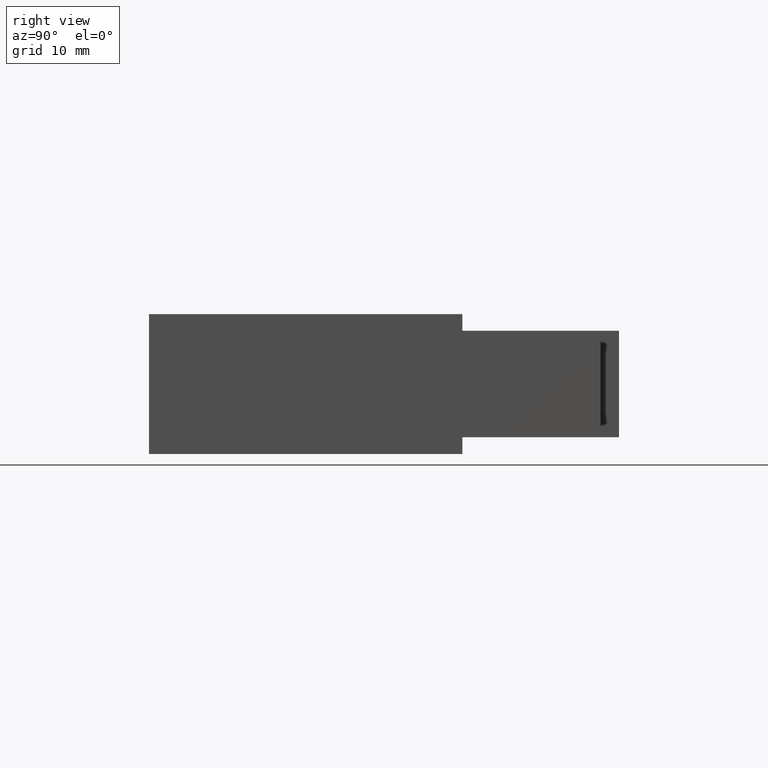
[diagram: clean part render]
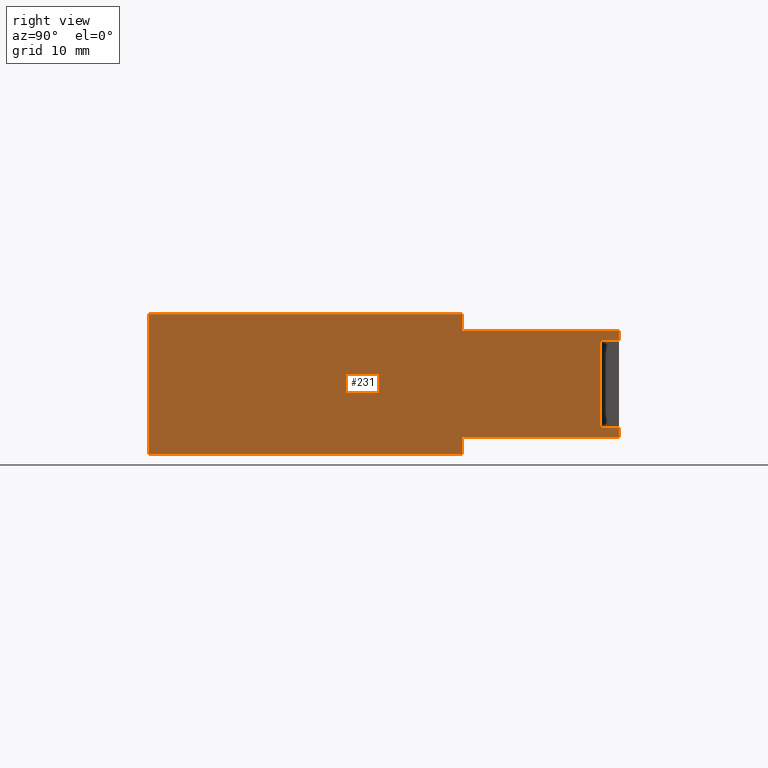
[diagram: same view with one face highlighted and labeled with its STEP entity id]
A machine part, right view. The second image highlights one B-rep face of the part: STEP entity #231.
In plain terms, the highlighted planar face has unit normal (-1, -0, 0).
Its self-contained STEP definition (entity closure, byte-faithful):
#89 = ORIENTED_EDGE ( 'NONE', *, *, #299, .F. ) ;
#105 = EDGE_LOOP ( 'NONE', ( #232, #236, #239, #242, #245, #224, #226, #227, #89, #300, #303, #124 ) ) ;
#124 = ORIENTED_EDGE ( 'NONE', *, *, #125, .F. ) ;
#125 = EDGE_CURVE ( 'NONE', #235, #305, #834, .T. ) ;
#222 = EDGE_CURVE ( 'NONE', #223, #244, #908, .T. ) ;
#223 = VERTEX_POINT ( 'NONE', #903 ) ;
#224 = ORIENTED_EDGE ( 'NONE', *, *, #225, .F. ) ;
#225 = EDGE_CURVE ( 'NONE', #316, #223, #904, .T. ) ;
#226 = ORIENTED_EDGE ( 'NONE', *, *, #315, .T. ) ;
#227 = ORIENTED_EDGE ( 'NONE', *, *, #228, .T. ) ;
#228 = EDGE_CURVE ( 'NONE', #313, #229, #1096, .T. ) ;
#229 = VERTEX_POINT ( 'NONE', #1092 ) ;
#230 = VERTEX_POINT ( 'NONE', #1091 ) ;
#231 = ADVANCED_FACE ( 'NONE', ( #1090 ), #1089, .F. ) ;
#232 = ORIENTED_EDGE ( 'NONE', *, *, #233, .F. ) ;
#233 = EDGE_CURVE ( 'NONE', #234, #235, #1084, .T. ) ;
#234 = VERTEX_POINT ( 'NONE', #1080 ) ;
#235 = VERTEX_POINT ( 'NONE', #1079 ) ;
#236 = ORIENTED_EDGE ( 'NONE', *, *, #237, .T. ) ;
#237 = EDGE_CURVE ( 'NONE', #234, #238, #1078, .T. ) ;
#238 = VERTEX_POINT ( 'NONE', #1074 ) ;
#239 = ORIENTED_EDGE ( 'NONE', *, *, #240, .F. ) ;
#240 = EDGE_CURVE ( 'NONE', #241, #238, #1073, .T. ) ;
#241 = VERTEX_POINT ( 'NONE', #1069 ) ;
#242 = ORIENTED_EDGE ( 'NONE', *, *, #243, .F. ) ;
#243 = EDGE_CURVE ( 'NONE', #244, #241, #1068, .T. ) ;
#244 = VERTEX_POINT ( 'NONE', #1064 ) ;
#245 = ORIENTED_EDGE ( 'NONE', *, *, #222, .F. ) ;
#299 = EDGE_CURVE ( 'NONE', #230, #229, #1354, .T. ) ;
#300 = ORIENTED_EDGE ( 'NONE', *, *, #301, .F. ) ;
#301 = EDGE_CURVE ( 'NONE', #302, #230, #1350, .T. ) ;
#302 = VERTEX_POINT ( 'NONE', #1346 ) ;
#303 = ORIENTED_EDGE ( 'NONE', *, *, #304, .F. ) ;
#304 = EDGE_CURVE ( 'NONE', #305, #302, #1345, .T. ) ;
#305 = VERTEX_POINT ( 'NONE', #1341 ) ;
#313 = VERTEX_POINT ( 'NONE', #1324 ) ;
#315 = EDGE_CURVE ( 'NONE', #316, #313, #1323, .T. ) ;
#316 = VERTEX_POINT ( 'NONE', #1319 ) ;
#831 = DIRECTION ( 'NONE',  ( -0.0000000000000000000, 1.000000000000000000, -0.0000000000000000000 ) ) ;
#832 = VECTOR ( 'NONE', #831, 39.37007874015748100 ) ;
#833 = CARTESIAN_POINT ( 'NONE',  ( 1.455000000000000300, 1.160000000000000100, 0.1397749999999995400 ) ) ;
#834 = LINE ( 'NONE', #833, #832 ) ;
#902 = CARTESIAN_POINT ( 'NONE',  ( 1.454999999999999800, 1.260000000000000200, 0.7500000000000001100 ) ) ;
#903 = CARTESIAN_POINT ( 'NONE',  ( 1.455000000000000300, 0.4199999999999997600, 0.7500000000000001100 ) ) ;
#904 = LINE ( 'NONE', #902, #1098 ) ;
#905 = DIRECTION ( 'NONE',  ( 0.0000000000000000000, 0.0000000000000000000, -1.000000000000000000 ) ) ;
#906 = VECTOR ( 'NONE', #905, 39.37007874015748100 ) ;
#907 = CARTESIAN_POINT ( 'NONE',  ( 1.455000000000000300, 0.4199999999999997600, 0.7500000000000001100 ) ) ;
#908 = LINE ( 'NONE', #907, #906 ) ;
#1064 = CARTESIAN_POINT ( 'NONE',  ( 1.455000000000000300, 0.4199999999999997600, 0.6604500000000003100 ) ) ;
#1065 = DIRECTION ( 'NONE',  ( -0.0000000000000000000, 1.000000000000000000, 1.626099996228727100E-016 ) ) ;
#1066 = VECTOR ( 'NONE', #1065, 39.37007874015748100 ) ;
#1067 = CARTESIAN_POINT ( 'NONE',  ( 1.455000000000000300, 1.260000000000000200, 0.6604500000000004300 ) ) ;
#1068 = LINE ( 'NONE', #1067, #1066 ) ;
#1069 = CARTESIAN_POINT ( 'NONE',  ( 1.455000000000000300, 1.260000000000000200, 0.6604500000000004300 ) ) ;
#1070 = DIRECTION ( 'NONE',  ( -0.0000000000000000000, -0.0000000000000000000, -1.000000000000000000 ) ) ;
#1071 = VECTOR ( 'NONE', #1070, 39.37007874015748100 ) ;
#1072 = CARTESIAN_POINT ( 'NONE',  ( 1.454999999999999800, 1.260000000000000200, 0.7500000000000001100 ) ) ;
#1073 = LINE ( 'NONE', #1072, #1071 ) ;
#1074 = CARTESIAN_POINT ( 'NONE',  ( 1.455000000000000300, 1.260000000000000200, 0.6102250000000000200 ) ) ;
#1075 = DIRECTION ( 'NONE',  ( -0.0000000000000000000, 1.000000000000000000, -0.0000000000000000000 ) ) ;
#1076 = VECTOR ( 'NONE', #1075, 39.37007874015748100 ) ;
#1077 = CARTESIAN_POINT ( 'NONE',  ( 1.455000000000000300, 1.160000000000000100, 0.6102250000000000200 ) ) ;
#1078 = LINE ( 'NONE', #1077, #1076 ) ;
#1079 = CARTESIAN_POINT ( 'NONE',  ( 1.455000000000000300, 1.160000000000000100, 0.1397749999999995400 ) ) ;
#1080 = CARTESIAN_POINT ( 'NONE',  ( 1.455000000000000300, 1.160000000000000100, 0.6102250000000000200 ) ) ;
#1081 = DIRECTION ( 'NONE',  ( -0.0000000000000000000, -0.0000000000000000000, -1.000000000000000000 ) ) ;
#1082 = VECTOR ( 'NONE', #1081, 39.37007874015748100 ) ;
#1083 = CARTESIAN_POINT ( 'NONE',  ( 1.455000000000000300, 1.160000000000000100, 0.1397749999999995400 ) ) ;
#1084 = LINE ( 'NONE', #1083, #1082 ) ;
#1085 = DIRECTION ( 'NONE',  ( 1.084066664152485400E-016, -1.000000000000000000, 0.0000000000000000000 ) ) ;
#1086 = DIRECTION ( 'NONE',  ( -1.000000000000000000, -1.084066664152485400E-016, 0.0000000000000000000 ) ) ;
#1087 = CARTESIAN_POINT ( 'NONE',  ( 1.454999999999999800, 1.260000000000000200, 0.7500000000000001100 ) ) ;
#1088 = AXIS2_PLACEMENT_3D ( 'NONE', #1087, #1086, #1085 ) ;
#1089 = PLANE ( 'NONE',  #1088 ) ;
#1090 = FACE_OUTER_BOUND ( 'NONE', #105, .T. ) ;
#1091 = CARTESIAN_POINT ( 'NONE',  ( 1.455000000000000300, 0.4199999999999998700, 0.08954999999999972700 ) ) ;
#1092 = CARTESIAN_POINT ( 'NONE',  ( 1.455000000000000300, 0.4199999999999998700, 0.0000000000000000000 ) ) ;
#1093 = DIRECTION ( 'NONE',  ( -1.084066664152485200E-016, 1.000000000000000000, -0.0000000000000000000 ) ) ;
#1094 = VECTOR ( 'NONE', #1093, 39.37007874015748100 ) ;
#1095 = CARTESIAN_POINT ( 'NONE',  ( 1.454999999999999800, 1.260000000000000200, 0.0000000000000000000 ) ) ;
#1096 = LINE ( 'NONE', #1095, #1094 ) ;
#1097 = DIRECTION ( 'NONE',  ( -1.084066664152485200E-016, 1.000000000000000000, -0.0000000000000000000 ) ) ;
#1098 = VECTOR ( 'NONE', #1097, 39.37007874015748100 ) ;
#1319 = CARTESIAN_POINT ( 'NONE',  ( 1.455000000000000300, -1.260000000000000000, 0.7500000000000001100 ) ) ;
#1320 = DIRECTION ( 'NONE',  ( -0.0000000000000000000, -0.0000000000000000000, -1.000000000000000000 ) ) ;
#1321 = VECTOR ( 'NONE', #1320, 39.37007874015748100 ) ;
#1322 = CARTESIAN_POINT ( 'NONE',  ( 1.455000000000000300, -1.260000000000000000, 0.7500000000000001100 ) ) ;
#1323 = LINE ( 'NONE', #1322, #1321 ) ;
#1324 = CARTESIAN_POINT ( 'NONE',  ( 1.455000000000000300, -1.260000000000000000, 0.0000000000000000000 ) ) ;
#1341 = CARTESIAN_POINT ( 'NONE',  ( 1.454999999999999800, 1.260000000000000200, 0.1397749999999996800 ) ) ;
#1342 = DIRECTION ( 'NONE',  ( -0.0000000000000000000, -0.0000000000000000000, -1.000000000000000000 ) ) ;
#1343 = VECTOR ( 'NONE', #1342, 39.37007874015748100 ) ;
#1344 = CARTESIAN_POINT ( 'NONE',  ( 1.454999999999999800, 1.260000000000000200, 0.7500000000000001100 ) ) ;
#1345 = LINE ( 'NONE', #1344, #1343 ) ;
#1346 = CARTESIAN_POINT ( 'NONE',  ( 1.455000000000000300, 1.260000000000000200, 0.08954999999999983800 ) ) ;
#1347 = DIRECTION ( 'NONE',  ( 0.0000000000000000000, -1.000000000000000000, -1.219574997171545800E-016 ) ) ;
#1348 = VECTOR ( 'NONE', #1347, 39.37007874015748100 ) ;
#1349 = CARTESIAN_POINT ( 'NONE',  ( 1.455000000000000300, 1.260000000000000200, 0.08954999999999983800 ) ) ;
#1350 = LINE ( 'NONE', #1349, #1348 ) ;
#1351 = DIRECTION ( 'NONE',  ( -0.0000000000000000000, -0.0000000000000000000, -1.000000000000000000 ) ) ;
#1352 = VECTOR ( 'NONE', #1351, 39.37007874015748100 ) ;
#1353 = CARTESIAN_POINT ( 'NONE',  ( 1.455000000000000300, 0.4199999999999998700, 0.0000000000000000000 ) ) ;
#1354 = LINE ( 'NONE', #1353, #1352 ) ;